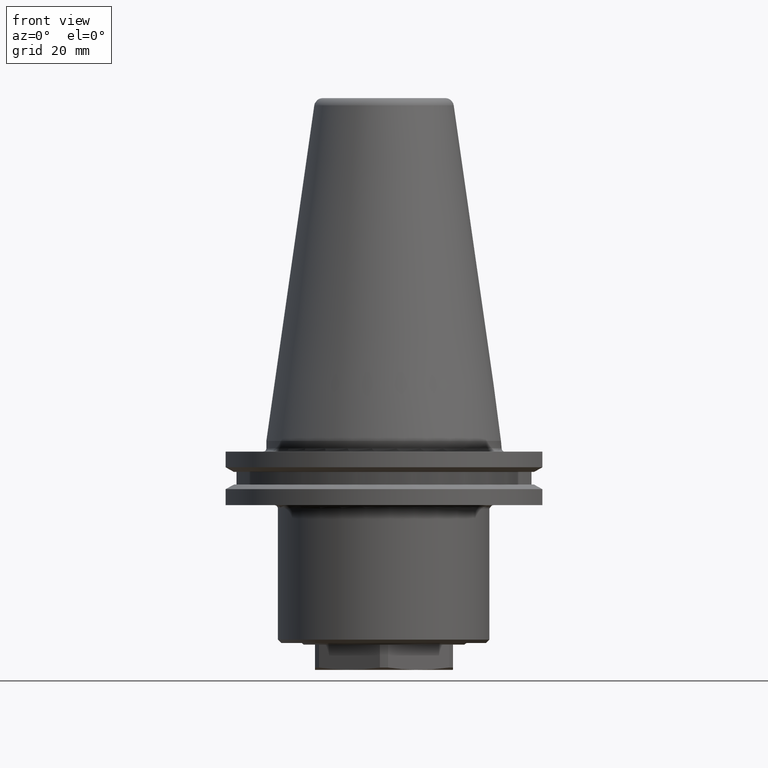
[diagram: clean part render]
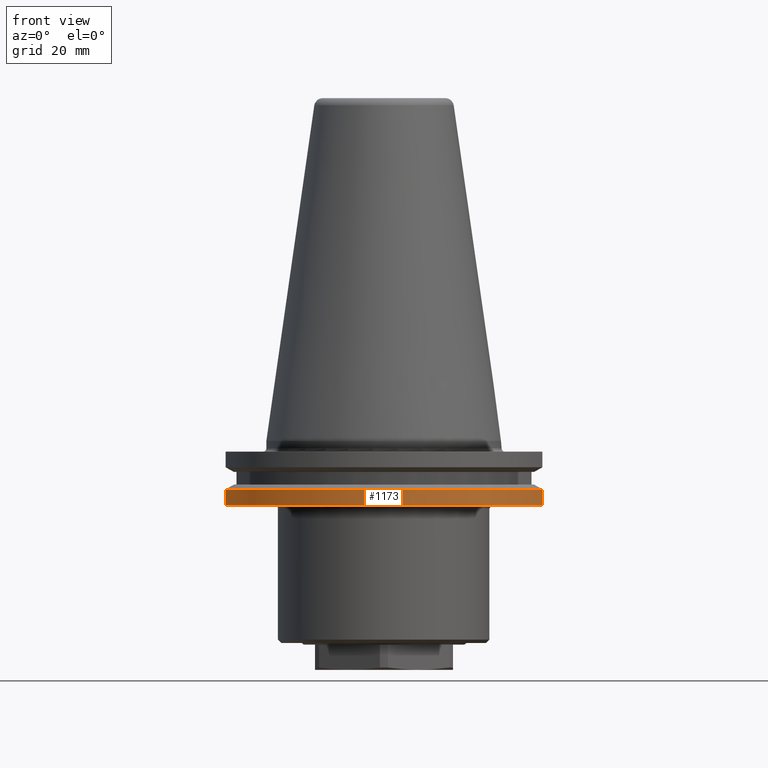
[diagram: same view with one face highlighted and labeled with its STEP entity id]
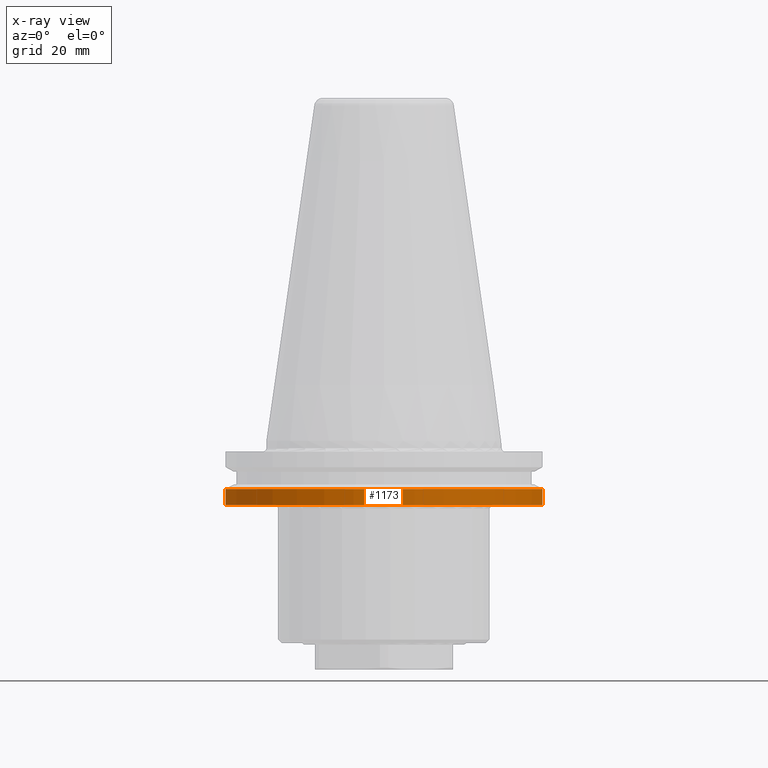
[diagram: x-ray of the same camera — body ghosted, the highlighted face saturated]
A machine part, front view. The second image highlights one B-rep face of the part: STEP entity #1173.
The next image is the same camera in x-ray: the body ghosted, the highlighted face saturated — about 0% of this face is hidden behind the body in this view.
In plain terms, the highlighted cylindrical surface (partial cylindrical patch) has radius 48.75 mm, axis along (0, 0, -1).
Its self-contained STEP definition (entity closure, byte-faithful):
#41=CYLINDRICAL_SURFACE('',#1300,48.75);
#105=LINE('',#2098,#190);
#108=LINE('',#2105,#193);
#190=VECTOR('',#1578,1000.);
#193=VECTOR('',#1585,1000.);
#465=ORIENTED_EDGE('',*,*,#709,.F.);
#466=ORIENTED_EDGE('',*,*,#710,.T.);
#467=ORIENTED_EDGE('',*,*,#632,.T.);
#468=ORIENTED_EDGE('',*,*,#706,.T.);
#632=EDGE_CURVE('',#781,#782,#880,.T.);
#706=EDGE_CURVE('',#782,#835,#105,.T.);
#709=EDGE_CURVE('',#836,#835,#903,.T.);
#710=EDGE_CURVE('',#836,#781,#108,.F.);
#781=VERTEX_POINT('',#1907);
#782=VERTEX_POINT('',#1908);
#835=VERTEX_POINT('',#2099);
#836=VERTEX_POINT('',#2104);
#880=CIRCLE('',#1253,48.75);
#903=CIRCLE('',#1301,48.75);
#972=EDGE_LOOP('',(#465,#466,#467,#468));
#1061=FACE_BOUND('',#972,.T.);
#1173=ADVANCED_FACE('',(#1061),#41,.T.);
#1253=AXIS2_PLACEMENT_3D('',#1906,#1446,#1447);
#1300=AXIS2_PLACEMENT_3D('',#2102,#1581,#1582);
#1301=AXIS2_PLACEMENT_3D('',#2103,#1583,#1584);
#1446=DIRECTION('',(0.,2.22044604925031E-16,-1.));
#1447=DIRECTION('',(-1.,0.,0.));
#1578=DIRECTION('',(0.,2.22044604925031E-16,-1.));
#1581=DIRECTION('',(0.,2.22044604925031E-16,-1.));
#1582=DIRECTION('',(-1.,0.,0.));
#1583=DIRECTION('',(0.,2.22044604925031E-16,-1.));
#1584=DIRECTION('',(-1.,0.,0.));
#1585=DIRECTION('',(0.,2.22044604925031E-16,-1.));
#1906=CARTESIAN_POINT('',(0.,3.18580612206168E-15,-14.3475952641916));
#1907=CARTESIAN_POINT('',(47.025950282796,-12.85,-14.3475952641916));
#1908=CARTESIAN_POINT('',(-47.025950282796,-12.85,-14.3475952641916));
#2098=CARTESIAN_POINT('',(-47.025950282796,-12.85,-60.));
#2099=CARTESIAN_POINT('',(-47.025950282796,-12.85,-19.1));
#2102=CARTESIAN_POINT('',(0.,1.33226762955019E-14,-60.));
#2103=CARTESIAN_POINT('',(0.,4.2410519540681E-15,-19.1));
#2104=CARTESIAN_POINT('',(47.025950282796,-12.85,-19.1));
#2105=CARTESIAN_POINT('',(47.025950282796,-12.85,-60.));